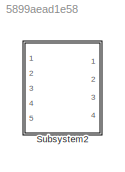
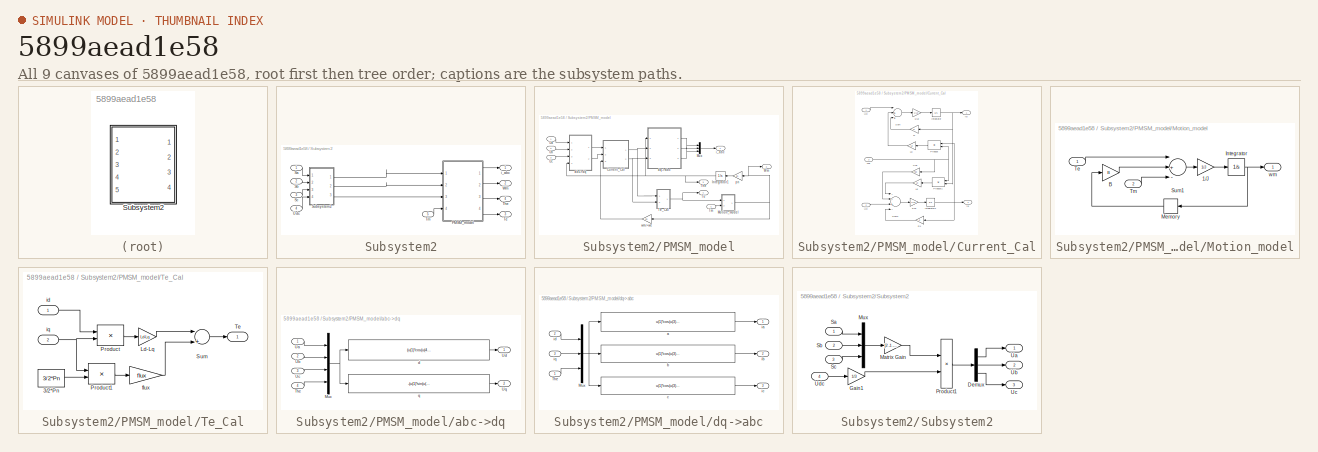
[diagram: thumbnail index - all 9 canvases of the model, root first then tree order]
MODEL slx_5899aead1e58
KIND model
BLOCK [SubSystem] Subsystem2
  Ports = [5, 4]
  RequestExecContextInheritance = off
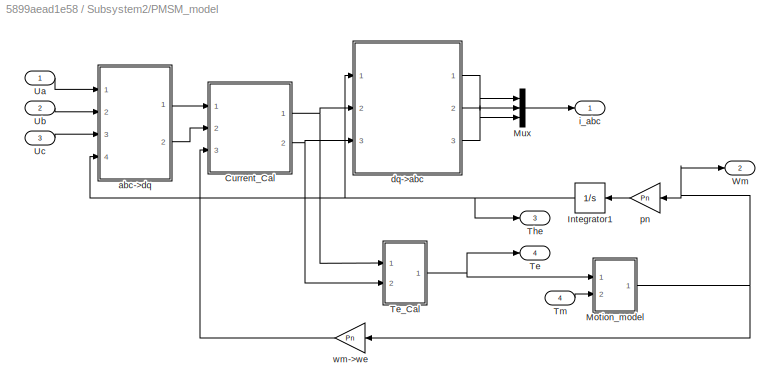
BLOCK [SubSystem] Subsystem2/PMSM_model
  Ports = [4, 4]
  RequestExecContextInheritance = off
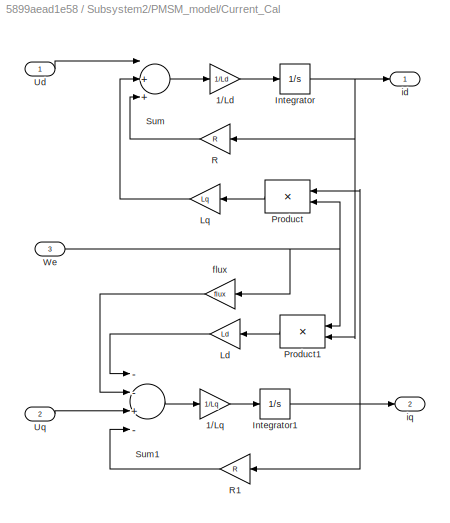
BLOCK [SubSystem] Subsystem2/PMSM_model/Current_Cal
  Ports = [3, 2]
  RequestExecContextInheritance = off
BLOCK [Gain] Subsystem2/PMSM_model/Current_Cal/1//Ld
  Gain = 1/Ld
BLOCK [Gain] Subsystem2/PMSM_model/Current_Cal/1//Lq
  Gain = 1/Lq
BLOCK [Integrator] Subsystem2/PMSM_model/Current_Cal/Integrator
  InitialCondition = 0.01
  Ports = [1, 1]
BLOCK [Integrator] Subsystem2/PMSM_model/Current_Cal/Integrator1
  Ports = [1, 1]
BLOCK [Gain] Subsystem2/PMSM_model/Current_Cal/Ld
  Gain = Ld
BLOCK [Gain] Subsystem2/PMSM_model/Current_Cal/Lq
  Gain = Lq
BLOCK [Product] Subsystem2/PMSM_model/Current_Cal/Product
  InputSameDT = off
  Ports = [2, 1]
  RndMeth = Floor
BLOCK [Product] Subsystem2/PMSM_model/Current_Cal/Product1
  InputSameDT = off
  Ports = [2, 1]
  RndMeth = Floor
BLOCK [Gain] Subsystem2/PMSM_model/Current_Cal/R
  Gain = R
BLOCK [Gain] Subsystem2/PMSM_model/Current_Cal/R1
  Gain = R
BLOCK [Sum] Subsystem2/PMSM_model/Current_Cal/Sum
  InputSameDT = off
  Inputs = |++-
  OutDataTypeStr = Inherit: Inherit via internal rule
  Ports = [3, 1]
BLOCK [Sum] Subsystem2/PMSM_model/Current_Cal/Sum1
  InputSameDT = off
  Inputs = --+-
  OutDataTypeStr = Inherit: Inherit via internal rule
  Ports = [4, 1]
BLOCK [Inport] Subsystem2/PMSM_model/Current_Cal/Ud
  IconDisplay = Port number
BLOCK [Inport] Subsystem2/PMSM_model/Current_Cal/Uq
  IconDisplay = Port number
  Port = 2
BLOCK [Inport] Subsystem2/PMSM_model/Current_Cal/We
  IconDisplay = Port number
  Port = 3
BLOCK [Gain] Subsystem2/PMSM_model/Current_Cal/flux
  Gain = flux
BLOCK [Outport] Subsystem2/PMSM_model/Current_Cal/id
  IconDisplay = Port number
BLOCK [Outport] Subsystem2/PMSM_model/Current_Cal/iq
  IconDisplay = Port number
  Port = 2
BLOCK [Integrator] Subsystem2/PMSM_model/Integrator1
  Ports = [1, 1]
BLOCK [SubSystem] Subsystem2/PMSM_model/Motion_model
  Ports = [2, 1]
  RequestExecContextInheritance = off
BLOCK [Gain] Subsystem2/PMSM_model/Motion_model/1//J
  Gain = 1/J
BLOCK [Gain] Subsystem2/PMSM_model/Motion_model/B
  Gain = B
BLOCK [Integrator] Subsystem2/PMSM_model/Motion_model/Integrator
  Ports = [1, 1]
BLOCK [Memory] Subsystem2/PMSM_model/Motion_model/Memory
BLOCK [Sum] Subsystem2/PMSM_model/Motion_model/Sum1
  InputSameDT = off
  Inputs = |+--
  OutDataTypeStr = Inherit: Inherit via internal rule
  Ports = [3, 1]
BLOCK [Inport] Subsystem2/PMSM_model/Motion_model/Te
  IconDisplay = Port number
BLOCK [Inport] Subsystem2/PMSM_model/Motion_model/Tm
  IconDisplay = Port number
  Port = 2
BLOCK [Outport] Subsystem2/PMSM_model/Motion_model/wm
  IconDisplay = Port number
BLOCK [Mux] Subsystem2/PMSM_model/Mux
  DisplayOption = bar
  Inputs = 3
  Ports = [3, 1]
BLOCK [Outport] Subsystem2/PMSM_model/Te
  IconDisplay = Port number
  Port = 4
BLOCK [SubSystem] Subsystem2/PMSM_model/Te_Cal
  Ports = [2, 1]
  RequestExecContextInheritance = off
BLOCK [Constant] Subsystem2/PMSM_model/Te_Cal/3//2*Pn
  Value = 3/2*Pn
BLOCK [Gain] Subsystem2/PMSM_model/Te_Cal/Ld-Lq
  Gain = Ld-Lq
BLOCK [Product] Subsystem2/PMSM_model/Te_Cal/Product
  InputSameDT = off
  Ports = [2, 1]
  RndMeth = Floor
BLOCK [Product] Subsystem2/PMSM_model/Te_Cal/Product1
  InputSameDT = off
  Ports = [2, 1]
  RndMeth = Floor
BLOCK [Sum] Subsystem2/PMSM_model/Te_Cal/Sum
  InputSameDT = off
  Inputs = |++
  OutDataTypeStr = Inherit: Inherit via internal rule
  Ports = [2, 1]
BLOCK [Outport] Subsystem2/PMSM_model/Te_Cal/Te
  IconDisplay = Port number
BLOCK [Gain] Subsystem2/PMSM_model/Te_Cal/flux
  Gain = flux
BLOCK [Inport] Subsystem2/PMSM_model/Te_Cal/id
  IconDisplay = Port number
BLOCK [Inport] Subsystem2/PMSM_model/Te_Cal/iq
  IconDisplay = Port number
  Port = 2
BLOCK [Outport] Subsystem2/PMSM_model/The
  IconDisplay = Port number
  Port = 3
BLOCK [Inport] Subsystem2/PMSM_model/Tm
  IconDisplay = Port number
  Port = 4
BLOCK [Inport] Subsystem2/PMSM_model/Ua
  IconDisplay = Port number
BLOCK [Inport] Subsystem2/PMSM_model/Ub
  IconDisplay = Port number
  Port = 2
BLOCK [Inport] Subsystem2/PMSM_model/Uc
  IconDisplay = Port number
  Port = 3
BLOCK [Outport] Subsystem2/PMSM_model/Wm
  IconDisplay = Port number
  Port = 2
BLOCK [SubSystem] Subsystem2/PMSM_model/abc->dq
  Ports = [4, 2]
  RequestExecContextInheritance = off
BLOCK [Mux] Subsystem2/PMSM_model/abc->dq/Mux
  DisplayOption = bar
  Ports = [4, 1]
BLOCK [Inport] Subsystem2/PMSM_model/abc->dq/The
  IconDisplay = Port number
  Port = 4
BLOCK [Inport] Subsystem2/PMSM_model/abc->dq/Ua
  IconDisplay = Port number
BLOCK [Inport] Subsystem2/PMSM_model/abc->dq/Ub
  IconDisplay = Port number
  Port = 2
BLOCK [Inport] Subsystem2/PMSM_model/abc->dq/Uc
  IconDisplay = Port number
  Port = 3
BLOCK [Outport] Subsystem2/PMSM_model/abc->dq/Ud
  IconDisplay = Port number
BLOCK [Outport] Subsystem2/PMSM_model/abc->dq/Uq
  IconDisplay = Port number
  Port = 2
BLOCK [Fcn] Subsystem2/PMSM_model/abc->dq/d
  Expr = (u(1)*cos(u(4))+u(2)*cos(u(4)-2/3*pi)+u(3)*cos(u(4)+2/3*pi))*2/3
BLOCK [Fcn] Subsystem2/PMSM_model/abc->dq/q
  Expr = -(u(1)*sin(u(4))+u(2)*sin(u(4)-2/3*pi)+u(3)*sin(u(4)+2/3*pi))*2/3
BLOCK [SubSystem] Subsystem2/PMSM_model/dq->abc
  Ports = [3, 3]
  RequestExecContextInheritance = off
BLOCK [Mux] Subsystem2/PMSM_model/dq->abc/Mux
  DisplayOption = bar
  Inputs = 3
  Ports = [3, 1]
BLOCK [Inport] Subsystem2/PMSM_model/dq->abc/The
  IconDisplay = Port number
BLOCK [Fcn] Subsystem2/PMSM_model/dq->abc/a
  Expr = u(1)*cos(u(3))-u(2)*sin(u(3))
BLOCK [Fcn] Subsystem2/PMSM_model/dq->abc/b
  Expr = u(1)*cos(u(3)-2/3*pi)-u(2)*sin(u(3)-2/3*pi)
BLOCK [Fcn] Subsystem2/PMSM_model/dq->abc/c
  Expr = u(1)*cos(u(3)+2/3*pi)-u(2)*sin(u(3)+2/3*pi)
BLOCK [Outport] Subsystem2/PMSM_model/dq->abc/ia
  IconDisplay = Port number
BLOCK [Outport] Subsystem2/PMSM_model/dq->abc/ib
  IconDisplay = Port number
  Port = 2
BLOCK [Outport] Subsystem2/PMSM_model/dq->abc/ic
  IconDisplay = Port number
  Port = 3
BLOCK [Inport] Subsystem2/PMSM_model/dq->abc/id
  IconDisplay = Port number
  Port = 2
BLOCK [Inport] Subsystem2/PMSM_model/dq->abc/iq
  IconDisplay = Port number
  Port = 3
BLOCK [Outport] Subsystem2/PMSM_model/i_abc
  IconDisplay = Port number
BLOCK [Gain] Subsystem2/PMSM_model/pn
  Gain = Pn
BLOCK [Gain] Subsystem2/PMSM_model/wm->we
  Gain = Pn
BLOCK [Inport] Subsystem2/Sa
  IconDisplay = Port number
BLOCK [Inport] Subsystem2/Sb
  IconDisplay = Port number
  Port = 2
BLOCK [Inport] Subsystem2/Sc
  IconDisplay = Port number
  Port = 3
BLOCK [SubSystem] Subsystem2/Subsystem2
  Ports = [4, 3]
  RequestExecContextInheritance = off
BLOCK [Demux] Subsystem2/Subsystem2/Demux
  Outputs = 3
  Ports = [1, 3]
BLOCK [Gain] Subsystem2/Subsystem2/Gain1
  Gain = 1/3
BLOCK [Gain] Subsystem2/Subsystem2/Matrix Gain
  Gain = [2 -1 -1;-1 2 -1;-1 -1 2]
  Multiplication = Matrix(K*u)
BLOCK [Mux] Subsystem2/Subsystem2/Mux
  DisplayOption = bar
  Inputs = 3
  Ports = [3, 1]
BLOCK [Product] Subsystem2/Subsystem2/Product1
  InputSameDT = off
  Ports = [2, 1]
  RndMeth = Floor
BLOCK [Inport] Subsystem2/Subsystem2/Sa
  IconDisplay = Port number
BLOCK [Inport] Subsystem2/Subsystem2/Sb
  IconDisplay = Port number
  Port = 2
BLOCK [Inport] Subsystem2/Subsystem2/Sc
  IconDisplay = Port number
  Port = 3
BLOCK [Outport] Subsystem2/Subsystem2/Ua
  IconDisplay = Port number
BLOCK [Outport] Subsystem2/Subsystem2/Ub
  IconDisplay = Port number
  Port = 2
BLOCK [Outport] Subsystem2/Subsystem2/Uc
  IconDisplay = Port number
  Port = 3
BLOCK [Inport] Subsystem2/Subsystem2/Udc
  IconDisplay = Port number
  Port = 4
BLOCK [Outport] Subsystem2/Te
  IconDisplay = Port number
  Port = 3
BLOCK [Outport] Subsystem2/The
  IconDisplay = Port number
  Port = 4
BLOCK [Inport] Subsystem2/Tm
  IconDisplay = Port number
  Port = 5
BLOCK [Inport] Subsystem2/Udc
  IconDisplay = Port number
  Port = 4
BLOCK [Outport] Subsystem2/Wm
  IconDisplay = Port number
  Port = 2
BLOCK [Outport] Subsystem2/i_abc
  IconDisplay = Port number
LINE Subsystem2/PMSM_model/Current_Cal/1//Ld:1 -> Subsystem2/PMSM_model/Current_Cal/Integrator:1
LINE Subsystem2/PMSM_model/Current_Cal/1//Lq:1 -> Subsystem2/PMSM_model/Current_Cal/Integrator1:1
NET Subsystem2/PMSM_model/Current_Cal/Integrator1:1 -> Subsystem2/PMSM_model/Current_Cal/Product:1, Subsystem2/PMSM_model/Current_Cal/R1:1, Subsystem2/PMSM_model/Current_Cal/iq:1
NET Subsystem2/PMSM_model/Current_Cal/Integrator:1 -> Subsystem2/PMSM_model/Current_Cal/Product1:2, Subsystem2/PMSM_model/Current_Cal/R:1, Subsystem2/PMSM_model/Current_Cal/id:1
LINE Subsystem2/PMSM_model/Current_Cal/Ld:1 -> Subsystem2/PMSM_model/Current_Cal/Sum1:1
LINE Subsystem2/PMSM_model/Current_Cal/Lq:1 -> Subsystem2/PMSM_model/Current_Cal/Sum:2
LINE Subsystem2/PMSM_model/Current_Cal/Product1:1 -> Subsystem2/PMSM_model/Current_Cal/Ld:1
LINE Subsystem2/PMSM_model/Current_Cal/Product:1 -> Subsystem2/PMSM_model/Current_Cal/Lq:1
LINE Subsystem2/PMSM_model/Current_Cal/R1:1 -> Subsystem2/PMSM_model/Current_Cal/Sum1:4
LINE Subsystem2/PMSM_model/Current_Cal/R:1 -> Subsystem2/PMSM_model/Current_Cal/Sum:3
LINE Subsystem2/PMSM_model/Current_Cal/Sum1:1 -> Subsystem2/PMSM_model/Current_Cal/1//Lq:1
LINE Subsystem2/PMSM_model/Current_Cal/Sum:1 -> Subsystem2/PMSM_model/Current_Cal/1//Ld:1
LINE Subsystem2/PMSM_model/Current_Cal/Ud:1 -> Subsystem2/PMSM_model/Current_Cal/Sum:1
LINE Subsystem2/PMSM_model/Current_Cal/Uq:1 -> Subsystem2/PMSM_model/Current_Cal/Sum1:3
NET Subsystem2/PMSM_model/Current_Cal/We:1 -> Subsystem2/PMSM_model/Current_Cal/Product1:1, Subsystem2/PMSM_model/Current_Cal/Product:2, Subsystem2/PMSM_model/Current_Cal/flux:1
LINE Subsystem2/PMSM_model/Current_Cal/flux:1 -> Subsystem2/PMSM_model/Current_Cal/Sum1:2
NET Subsystem2/PMSM_model/Current_Cal:1 -> Subsystem2/PMSM_model/Te_Cal:1, Subsystem2/PMSM_model/dq->abc:2
NET Subsystem2/PMSM_model/Current_Cal:2 -> Subsystem2/PMSM_model/Te_Cal:2, Subsystem2/PMSM_model/dq->abc:3
NET Subsystem2/PMSM_model/Integrator1:1 -> Subsystem2/PMSM_model/The:1, Subsystem2/PMSM_model/abc->dq:4, Subsystem2/PMSM_model/dq->abc:1
LINE Subsystem2/PMSM_model/Motion_model/1//J:1 -> Subsystem2/PMSM_model/Motion_model/Integrator:1
LINE Subsystem2/PMSM_model/Motion_model/B:1 -> Subsystem2/PMSM_model/Motion_model/Sum1:2
NET Subsystem2/PMSM_model/Motion_model/Integrator:1 -> Subsystem2/PMSM_model/Motion_model/Memory:1, Subsystem2/PMSM_model/Motion_model/wm:1
LINE Subsystem2/PMSM_model/Motion_model/Memory:1 -> Subsystem2/PMSM_model/Motion_model/B:1
LINE Subsystem2/PMSM_model/Motion_model/Sum1:1 -> Subsystem2/PMSM_model/Motion_model/1//J:1
LINE Subsystem2/PMSM_model/Motion_model/Te:1 -> Subsystem2/PMSM_model/Motion_model/Sum1:1
LINE Subsystem2/PMSM_model/Motion_model/Tm:1 -> Subsystem2/PMSM_model/Motion_model/Sum1:3
NET Subsystem2/PMSM_model/Motion_model:1 -> Subsystem2/PMSM_model/Wm:1, Subsystem2/PMSM_model/pn:1, Subsystem2/PMSM_model/wm->we:1
LINE Subsystem2/PMSM_model/Mux:1 -> Subsystem2/PMSM_model/i_abc:1
LINE Subsystem2/PMSM_model/Te_Cal/3//2*Pn:1 -> Subsystem2/PMSM_model/Te_Cal/Product1:2
LINE Subsystem2/PMSM_model/Te_Cal/Ld-Lq:1 -> Subsystem2/PMSM_model/Te_Cal/Sum:1
LINE Subsystem2/PMSM_model/Te_Cal/Product1:1 -> Subsystem2/PMSM_model/Te_Cal/flux:1
LINE Subsystem2/PMSM_model/Te_Cal/Product:1 -> Subsystem2/PMSM_model/Te_Cal/Ld-Lq:1
LINE Subsystem2/PMSM_model/Te_Cal/Sum:1 -> Subsystem2/PMSM_model/Te_Cal/Te:1
LINE Subsystem2/PMSM_model/Te_Cal/flux:1 -> Subsystem2/PMSM_model/Te_Cal/Sum:2
LINE Subsystem2/PMSM_model/Te_Cal/id:1 -> Subsystem2/PMSM_model/Te_Cal/Product:1
NET Subsystem2/PMSM_model/Te_Cal/iq:1 -> Subsystem2/PMSM_model/Te_Cal/Product1:1, Subsystem2/PMSM_model/Te_Cal/Product:2
NET Subsystem2/PMSM_model/Te_Cal:1 -> Subsystem2/PMSM_model/Motion_model:1, Subsystem2/PMSM_model/Te:1
LINE Subsystem2/PMSM_model/Tm:1 -> Subsystem2/PMSM_model/Motion_model:2
LINE Subsystem2/PMSM_model/Ua:1 -> Subsystem2/PMSM_model/abc->dq:1
LINE Subsystem2/PMSM_model/Ub:1 -> Subsystem2/PMSM_model/abc->dq:2
LINE Subsystem2/PMSM_model/Uc:1 -> Subsystem2/PMSM_model/abc->dq:3
NET Subsystem2/PMSM_model/abc->dq/Mux:1 -> Subsystem2/PMSM_model/abc->dq/d:1, Subsystem2/PMSM_model/abc->dq/q:1
LINE Subsystem2/PMSM_model/abc->dq/The:1 -> Subsystem2/PMSM_model/abc->dq/Mux:4
LINE Subsystem2/PMSM_model/abc->dq/Ua:1 -> Subsystem2/PMSM_model/abc->dq/Mux:1
LINE Subsystem2/PMSM_model/abc->dq/Ub:1 -> Subsystem2/PMSM_model/abc->dq/Mux:2
LINE Subsystem2/PMSM_model/abc->dq/Uc:1 -> Subsystem2/PMSM_model/abc->dq/Mux:3
LINE Subsystem2/PMSM_model/abc->dq/d:1 -> Subsystem2/PMSM_model/abc->dq/Ud:1
LINE Subsystem2/PMSM_model/abc->dq/q:1 -> Subsystem2/PMSM_model/abc->dq/Uq:1
LINE Subsystem2/PMSM_model/abc->dq:1 -> Subsystem2/PMSM_model/Current_Cal:1
LINE Subsystem2/PMSM_model/abc->dq:2 -> Subsystem2/PMSM_model/Current_Cal:2
NET Subsystem2/PMSM_model/dq->abc/Mux:1 -> Subsystem2/PMSM_model/dq->abc/a:1, Subsystem2/PMSM_model/dq->abc/b:1, Subsystem2/PMSM_model/dq->abc/c:1
LINE Subsystem2/PMSM_model/dq->abc/The:1 -> Subsystem2/PMSM_model/dq->abc/Mux:3
LINE Subsystem2/PMSM_model/dq->abc/a:1 -> Subsystem2/PMSM_model/dq->abc/ia:1
LINE Subsystem2/PMSM_model/dq->abc/b:1 -> Subsystem2/PMSM_model/dq->abc/ib:1
LINE Subsystem2/PMSM_model/dq->abc/c:1 -> Subsystem2/PMSM_model/dq->abc/ic:1
LINE Subsystem2/PMSM_model/dq->abc/id:1 -> Subsystem2/PMSM_model/dq->abc/Mux:1
LINE Subsystem2/PMSM_model/dq->abc/iq:1 -> Subsystem2/PMSM_model/dq->abc/Mux:2
LINE Subsystem2/PMSM_model/dq->abc:1 -> Subsystem2/PMSM_model/Mux:1
LINE Subsystem2/PMSM_model/dq->abc:2 -> Subsystem2/PMSM_model/Mux:2
LINE Subsystem2/PMSM_model/dq->abc:3 -> Subsystem2/PMSM_model/Mux:3
LINE Subsystem2/PMSM_model/pn:1 -> Subsystem2/PMSM_model/Integrator1:1
LINE Subsystem2/PMSM_model/wm->we:1 -> Subsystem2/PMSM_model/Current_Cal:3
LINE Subsystem2/PMSM_model:1 -> Subsystem2/i_abc:1
LINE Subsystem2/PMSM_model:2 -> Subsystem2/Wm:1
LINE Subsystem2/PMSM_model:3 -> Subsystem2/The:1
LINE Subsystem2/PMSM_model:4 -> Subsystem2/Te:1
LINE Subsystem2/Sa:1 -> Subsystem2/Subsystem2:1
LINE Subsystem2/Sb:1 -> Subsystem2/Subsystem2:2
LINE Subsystem2/Sc:1 -> Subsystem2/Subsystem2:3
LINE Subsystem2/Subsystem2/Demux:1 -> Subsystem2/Subsystem2/Ua:1
LINE Subsystem2/Subsystem2/Demux:2 -> Subsystem2/Subsystem2/Ub:1
LINE Subsystem2/Subsystem2/Demux:3 -> Subsystem2/Subsystem2/Uc:1
LINE Subsystem2/Subsystem2/Gain1:1 -> Subsystem2/Subsystem2/Product1:2
LINE Subsystem2/Subsystem2/Matrix Gain:1 -> Subsystem2/Subsystem2/Product1:1
LINE Subsystem2/Subsystem2/Mux:1 -> Subsystem2/Subsystem2/Matrix Gain:1
LINE Subsystem2/Subsystem2/Product1:1 -> Subsystem2/Subsystem2/Demux:1
LINE Subsystem2/Subsystem2/Sa:1 -> Subsystem2/Subsystem2/Mux:1
LINE Subsystem2/Subsystem2/Sb:1 -> Subsystem2/Subsystem2/Mux:2
LINE Subsystem2/Subsystem2/Sc:1 -> Subsystem2/Subsystem2/Mux:3
LINE Subsystem2/Subsystem2/Udc:1 -> Subsystem2/Subsystem2/Gain1:1
LINE Subsystem2/Subsystem2:1 -> Subsystem2/PMSM_model:1
LINE Subsystem2/Subsystem2:2 -> Subsystem2/PMSM_model:2
LINE Subsystem2/Subsystem2:3 -> Subsystem2/PMSM_model:3
LINE Subsystem2/Tm:1 -> Subsystem2/PMSM_model:4
LINE Subsystem2/Udc:1 -> Subsystem2/Subsystem2:4
note: NET lines group one-source signal fan-out (src -> all destinations, sorted); 1:1 wires keep LINE
